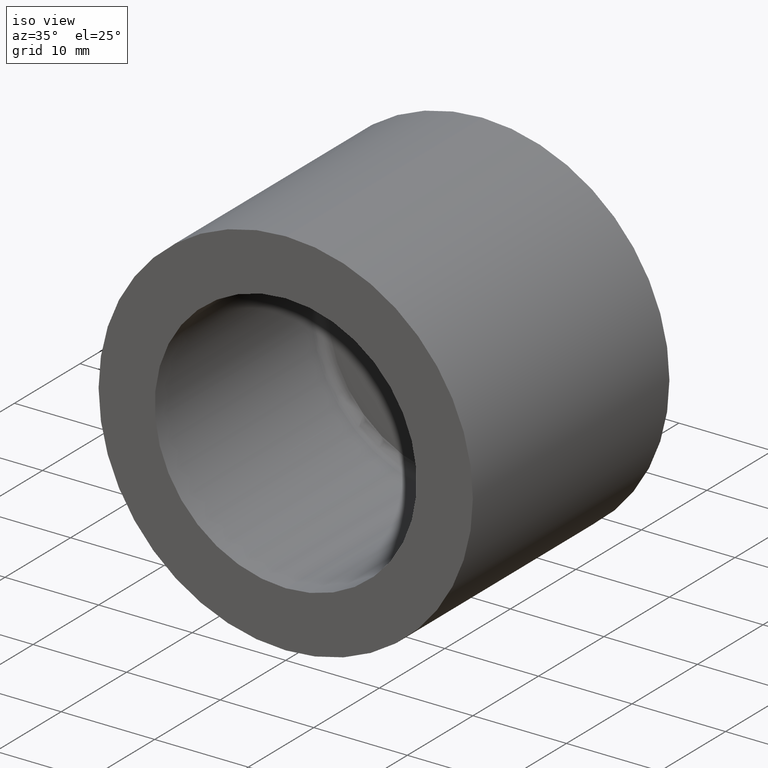
[diagram: clean part render]
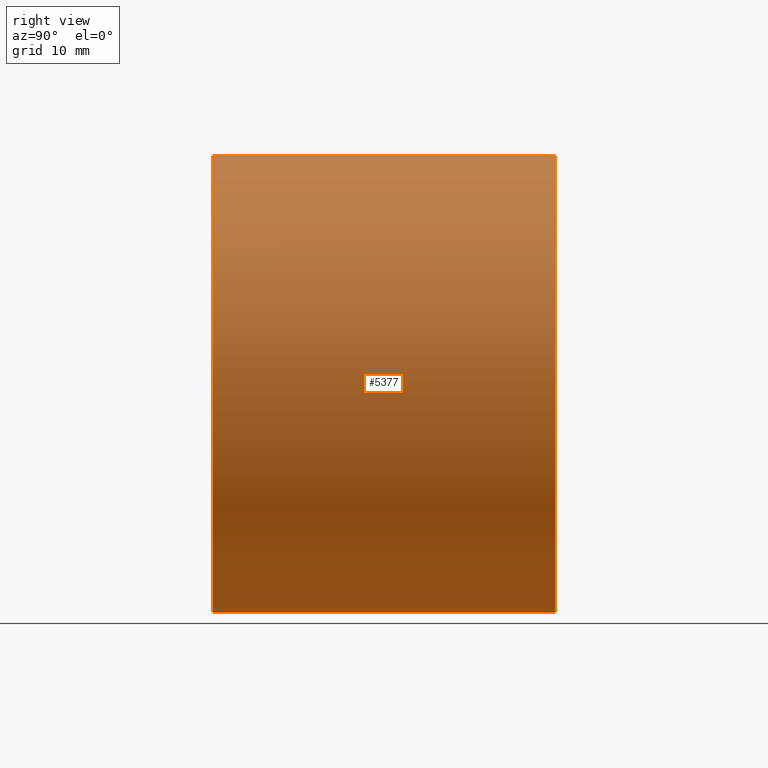
[diagram: tour spotlight — one face highlighted and labeled with its STEP entity id]
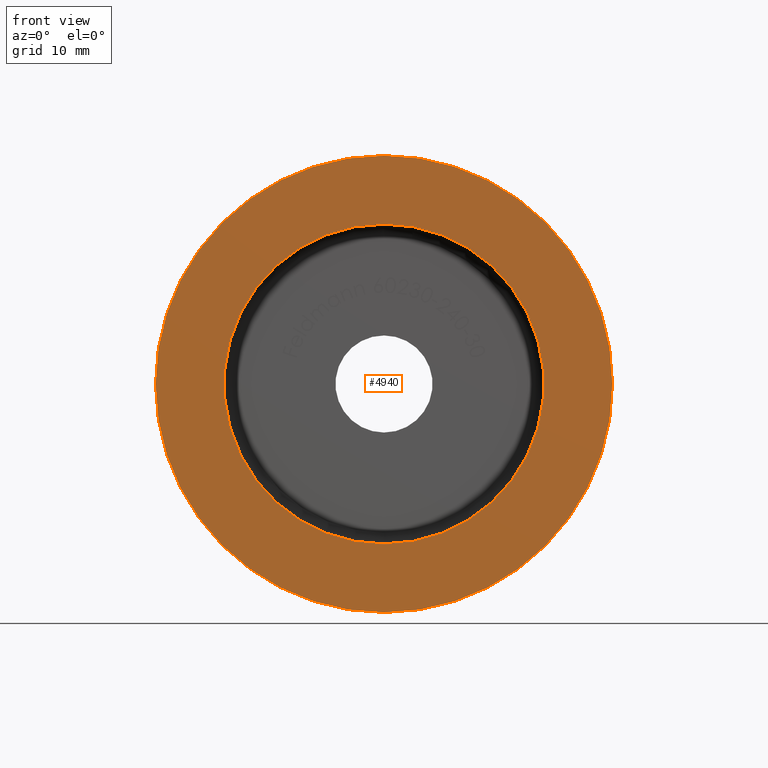
[diagram: tour spotlight — one face highlighted and labeled with its STEP entity id]
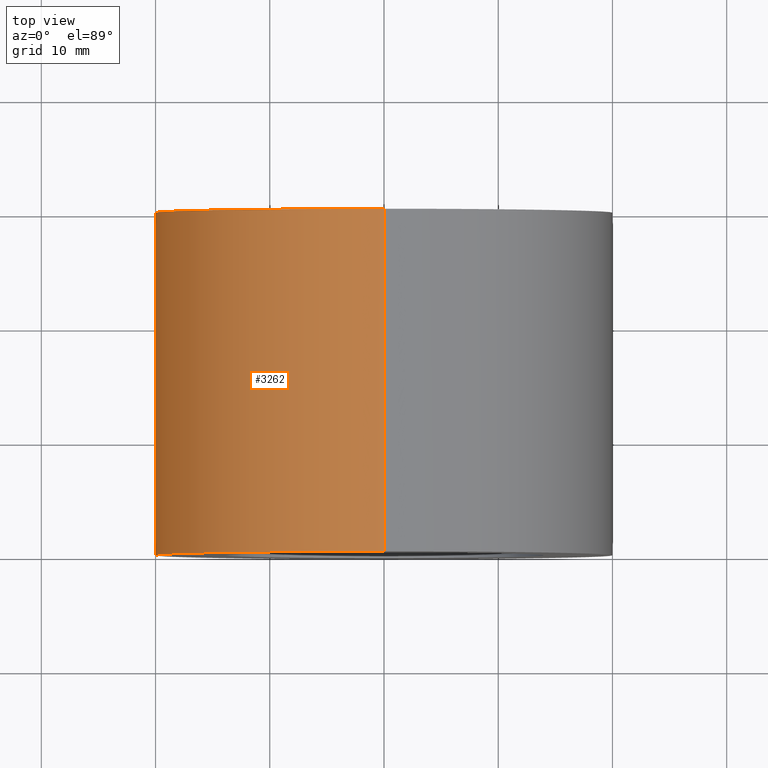
[diagram: tour spotlight — one face highlighted and labeled with its STEP entity id]
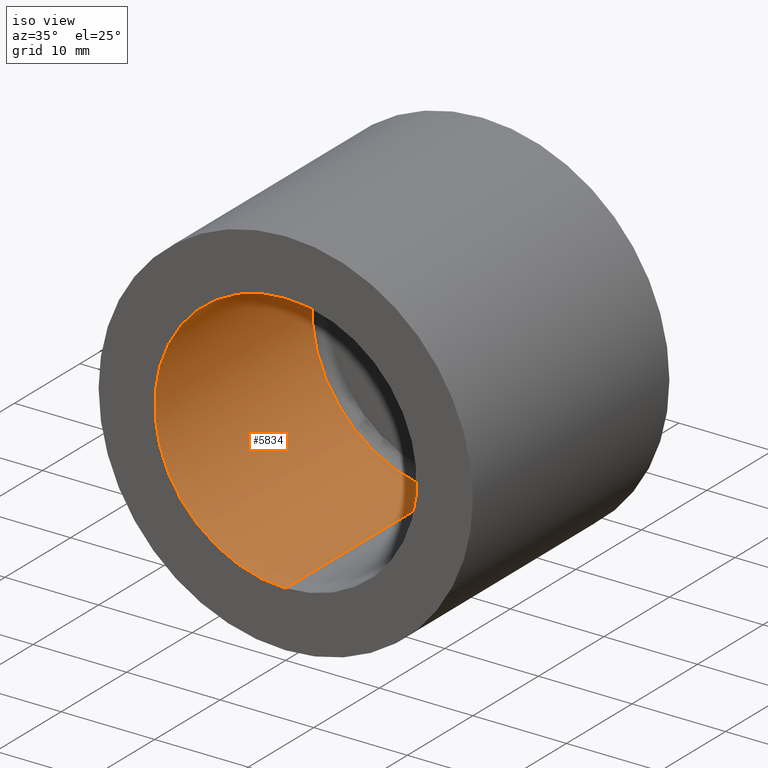
[diagram: tour spotlight — one face highlighted and labeled with its STEP entity id]
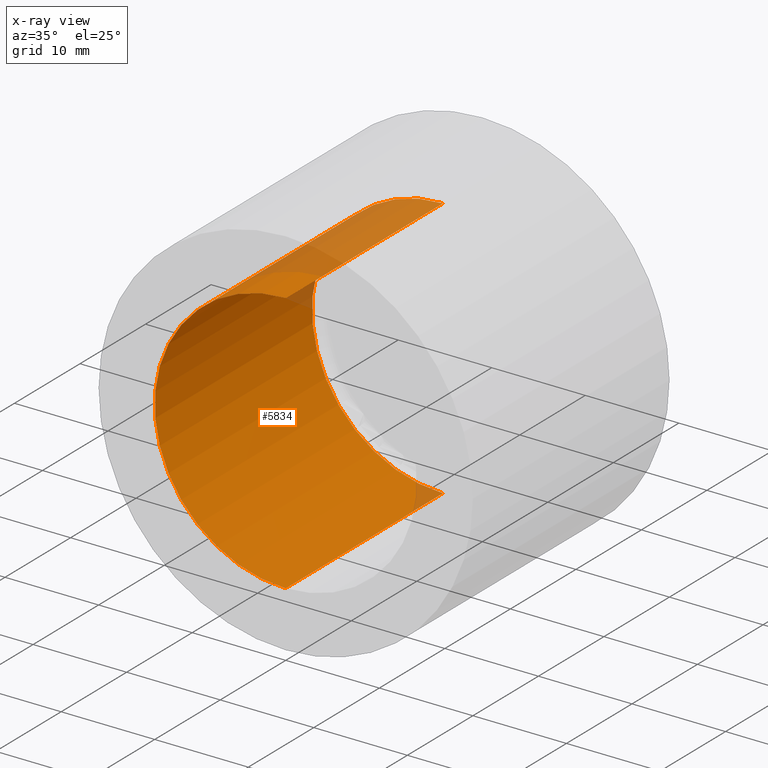
[diagram: x-ray of the same camera — body ghosted, this tour face saturated]
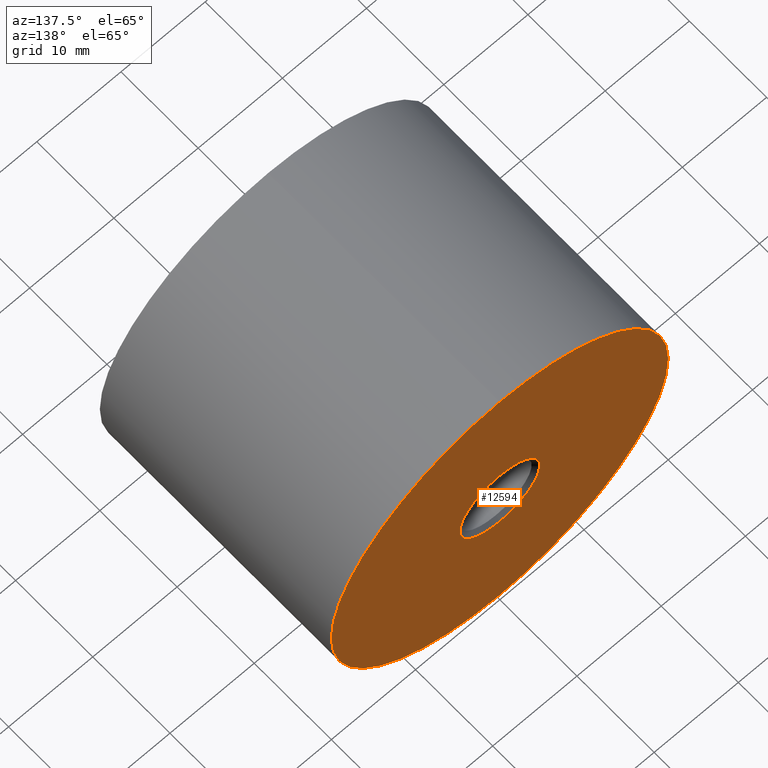
[diagram: tour spotlight — one face highlighted and labeled with its STEP entity id]
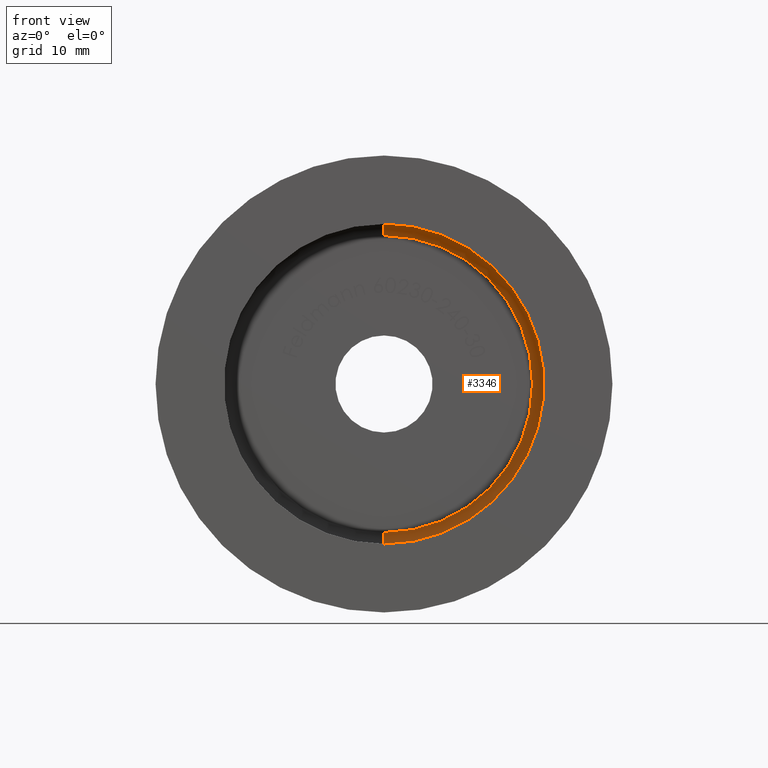
[diagram: tour spotlight — one face highlighted and labeled with its STEP entity id]
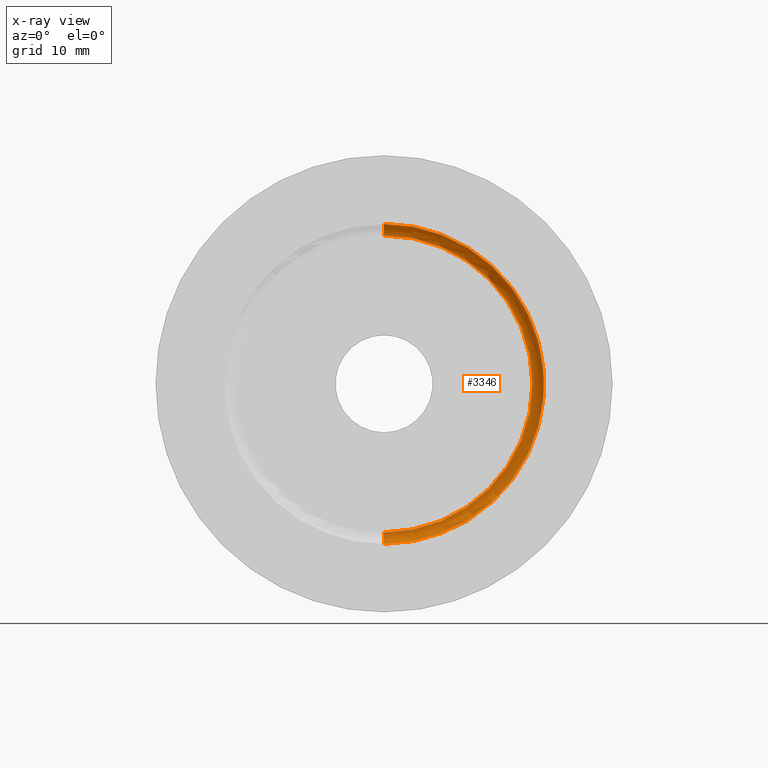
[diagram: x-ray of the same camera — body ghosted, this tour face saturated]
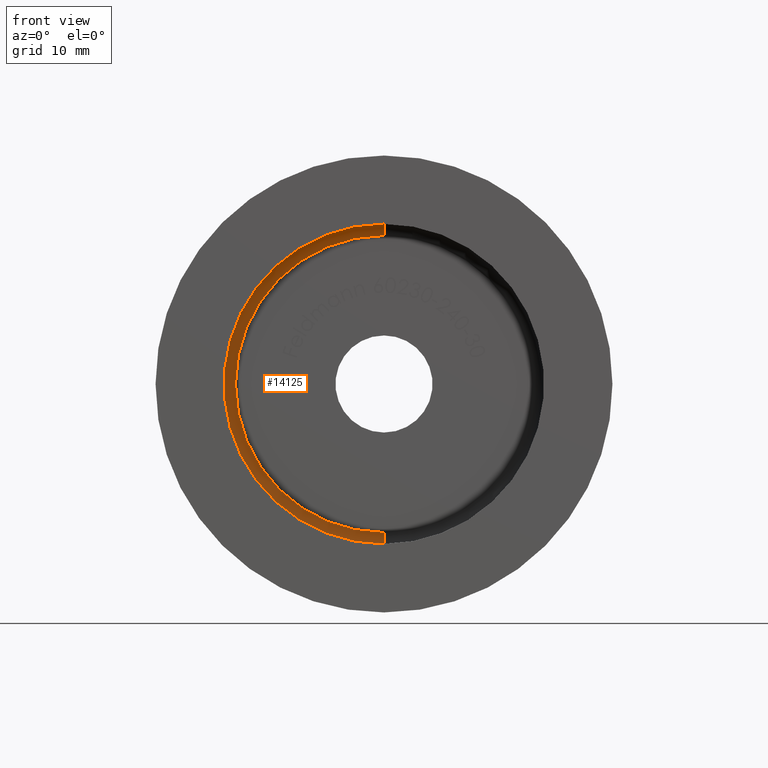
[diagram: tour spotlight — one face highlighted and labeled with its STEP entity id]
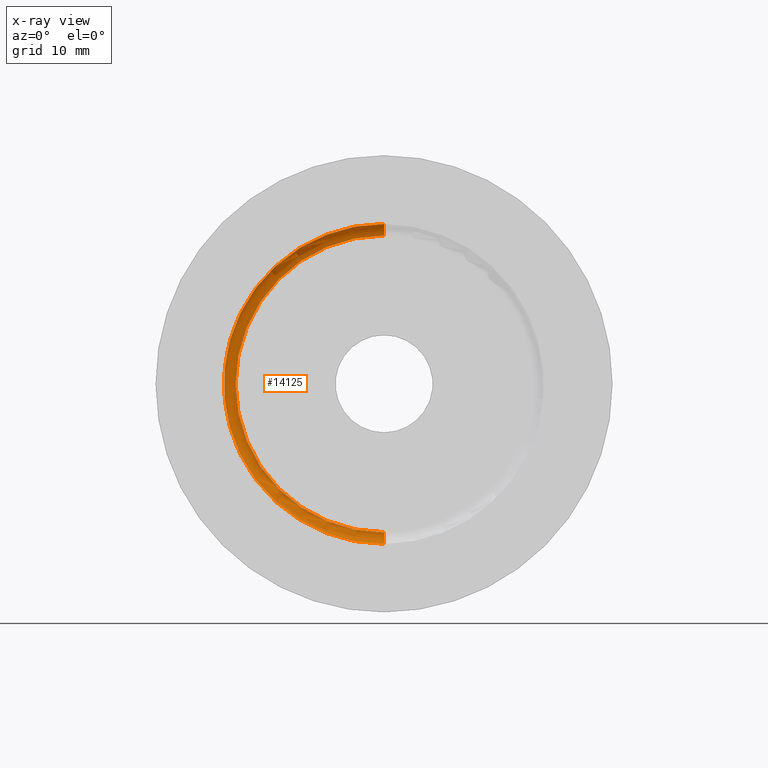
[diagram: x-ray of the same camera — body ghosted, this tour face saturated]
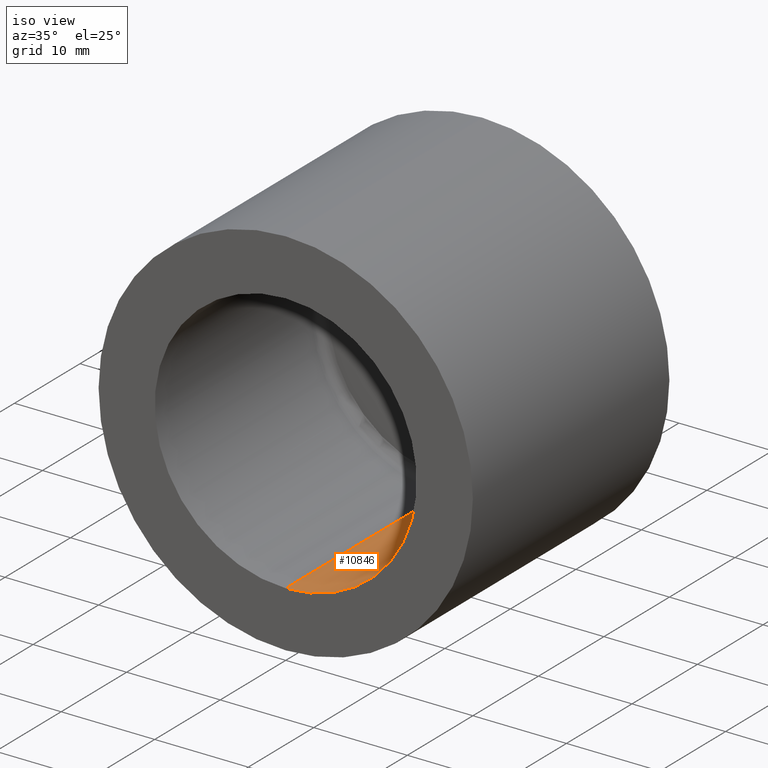
[diagram: tour spotlight — one face highlighted and labeled with its STEP entity id]
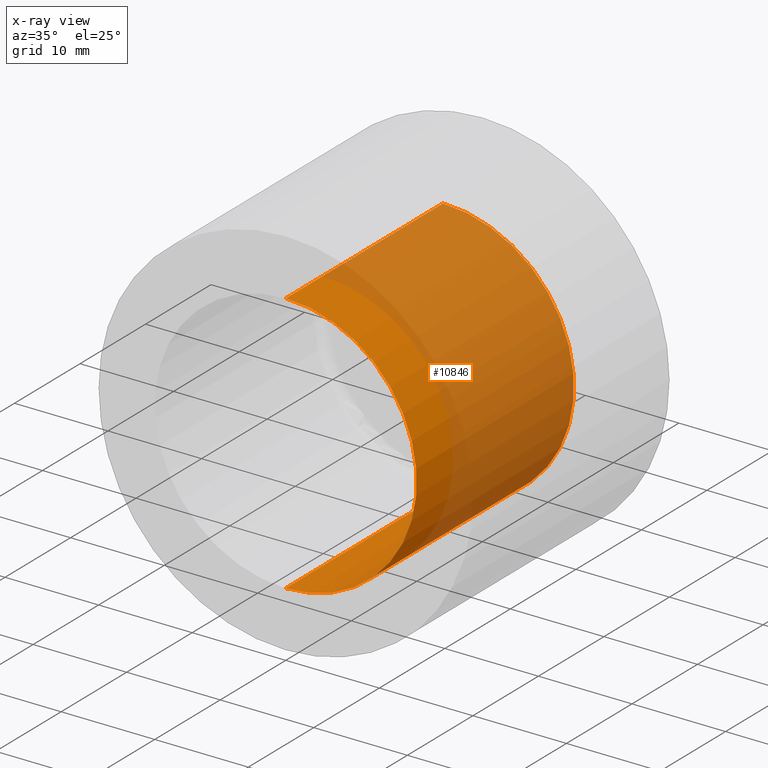
[diagram: x-ray of the same camera — body ghosted, this tour face saturated]
A machine part: a face-by-face anatomy tour. The part has 271 B-rep faces; the first image is the clean iso view, then the 8 largest visible faces are spotlighted one at a time (largest first), each with its STEP entity span.

Face 1 — right view, entity #5377. In plain terms, the highlighted cylindrical surface (partial cylindrical patch) has radius 20 mm, axis along (-0, 1, -0).
Definition (entity closure, byte-faithful):
#1001 = VERTEX_POINT ( 'NONE', #6628 ) ;
#1021 = CARTESIAN_POINT ( 'NONE',  ( 2.449293598294706513E-15, 0.000000000000000000, -20.00000000000000000 ) ) ;
#1128 = DIRECTION ( 'NONE',  ( -0.000000000000000000, 1.000000000000000000, -0.000000000000000000 ) ) ;
#1153 = LINE ( 'NONE', #2444, #12739 ) ;
#1687 = EDGE_CURVE ( 'NONE', #12346, #5553, #5341, .T. ) ;
#2324 = CARTESIAN_POINT ( 'NONE',  ( 0.000000000000000000, 0.000000000000000000, 0.000000000000000000 ) ) ;
#2444 = CARTESIAN_POINT ( 'NONE',  ( 0.000000000000000000, 30.00000000000000000, 20.00000000000000355 ) ) ;
#3727 = CYLINDRICAL_SURFACE ( 'NONE', #7210, 20.00000000000000355 ) ;
#4367 = CARTESIAN_POINT ( 'NONE',  ( 2.449293598294707302E-15, 30.00000000000000000, -20.00000000000000711 ) ) ;
#4596 = CARTESIAN_POINT ( 'NONE',  ( 2.449293598294706907E-15, 30.00000000000000000, -20.00000000000000355 ) ) ;
#4636 = CARTESIAN_POINT ( 'NONE',  ( 0.000000000000000000, 30.00000000000000000, 0.000000000000000000 ) ) ;
#5341 = CIRCLE ( 'NONE', #14836, 20.00000000000000711 ) ;
#5377 = ADVANCED_FACE ( 'NONE', ( #16061 ), #3727, .T. ) ;
#5378 = EDGE_CURVE ( 'NONE', #1001, #12346, #1153, .T. ) ;
#5496 = LINE ( 'NONE', #4596, #10978 ) ;
#5553 = VERTEX_POINT ( 'NONE', #4367 ) ;
#6193 = DIRECTION ( 'NONE',  ( 0.000000000000000000, 0.000000000000000000, 1.000000000000000000 ) ) ;
#6389 = EDGE_CURVE ( 'NONE', #6482, #5553, #5496, .T. ) ;
#6482 = VERTEX_POINT ( 'NONE', #1021 ) ;
#6510 = ORIENTED_EDGE ( 'NONE', *, *, #12658, .T. ) ;
#6628 = CARTESIAN_POINT ( 'NONE',  ( 0.000000000000000000, 0.000000000000000000, 20.00000000000000000 ) ) ;
#6802 = AXIS2_PLACEMENT_3D ( 'NONE', #2324, #16067, #6193 ) ;
#7127 = DIRECTION ( 'NONE',  ( -0.000000000000000000, 1.000000000000000000, -0.000000000000000000 ) ) ;
#7210 = AXIS2_PLACEMENT_3D ( 'NONE', #9588, #7127, #11109 ) ;
#8168 = DIRECTION ( 'NONE',  ( 0.000000000000000000, 0.000000000000000000, 1.000000000000000000 ) ) ;
#8209 = DIRECTION ( 'NONE',  ( -0.000000000000000000, 1.000000000000000000, -0.000000000000000000 ) ) ;
#8342 = ORIENTED_EDGE ( 'NONE', *, *, #5378, .F. ) ;
#9588 = CARTESIAN_POINT ( 'NONE',  ( 0.000000000000000000, 30.00000000000000000, 0.000000000000000000 ) ) ;
#10423 = CARTESIAN_POINT ( 'NONE',  ( 0.000000000000000000, 30.00000000000000000, 20.00000000000000711 ) ) ;
#10978 = VECTOR ( 'NONE', #13240, 1000.000000000000000 ) ;
#11109 = DIRECTION ( 'NONE',  ( 0.000000000000000000, 0.000000000000000000, 1.000000000000000000 ) ) ;
#12346 = VERTEX_POINT ( 'NONE', #10423 ) ;
#12658 = EDGE_CURVE ( 'NONE', #1001, #6482, #14906, .T. ) ;
#12739 = VECTOR ( 'NONE', #1128, 1000.000000000000000 ) ;
#13240 = DIRECTION ( 'NONE',  ( -0.000000000000000000, 1.000000000000000000, -0.000000000000000000 ) ) ;
#14728 = ORIENTED_EDGE ( 'NONE', *, *, #1687, .F. ) ;
#14836 = AXIS2_PLACEMENT_3D ( 'NONE', #4636, #8209, #8168 ) ;
#14906 = CIRCLE ( 'NONE', #6802, 20.00000000000000000 ) ;
#15312 = EDGE_LOOP ( 'NONE', ( #6510, #16140, #14728, #8342 ) ) ;
#16061 = FACE_OUTER_BOUND ( 'NONE', #15312, .T. ) ;
#16067 = DIRECTION ( 'NONE',  ( -0.000000000000000000, 1.000000000000000000, -0.000000000000000000 ) ) ;
#16140 = ORIENTED_EDGE ( 'NONE', *, *, #6389, .T. ) ;

Face 2 — front view, entity #4940. In plain terms, the highlighted planar face has unit normal (0, -1, 0).
Definition (entity closure, byte-faithful):
#1001 = VERTEX_POINT ( 'NONE', #6628 ) ;
#1021 = CARTESIAN_POINT ( 'NONE',  ( 2.449293598294706513E-15, 0.000000000000000000, -20.00000000000000000 ) ) ;
#1376 = EDGE_LOOP ( 'NONE', ( #4952, #12187 ) ) ;
#2324 = CARTESIAN_POINT ( 'NONE',  ( 0.000000000000000000, 0.000000000000000000, 0.000000000000000000 ) ) ;
#3203 = AXIS2_PLACEMENT_3D ( 'NONE', #6208, #3670, #14963 ) ;
#3670 = DIRECTION ( 'NONE',  ( 0.000000000000000000, -1.000000000000000000, 0.000000000000000000 ) ) ;
#3678 = EDGE_CURVE ( 'NONE', #15979, #8223, #4334, .T. ) ;
#4334 = CIRCLE ( 'NONE', #12310, 14.00000000000000000 ) ;
#4434 = ORIENTED_EDGE ( 'NONE', *, *, #13236, .F. ) ;
#4940 = ADVANCED_FACE ( 'NONE', ( #7260, #14873 ), #7554, .T. ) ;
#4952 = ORIENTED_EDGE ( 'NONE', *, *, #9308, .F. ) ;
#5727 = CARTESIAN_POINT ( 'NONE',  ( 1.714505518806294638E-15, 0.000000000000000000, 14.00000000000000000 ) ) ;
#5890 = CIRCLE ( 'NONE', #11507, 20.00000000000000000 ) ;
#6193 = DIRECTION ( 'NONE',  ( 0.000000000000000000, 0.000000000000000000, 1.000000000000000000 ) ) ;
#6195 = CARTESIAN_POINT ( 'NONE',  ( 0.000000000000000000, 0.000000000000000000, 0.000000000000000000 ) ) ;
#6208 = CARTESIAN_POINT ( 'NONE',  ( 0.000000000000000000, 0.000000000000000000, 0.000000000000000000 ) ) ;
#6326 = DIRECTION ( 'NONE',  ( 0.000000000000000000, -1.000000000000000000, 0.000000000000000000 ) ) ;
#6482 = VERTEX_POINT ( 'NONE', #1021 ) ;
#6539 = CIRCLE ( 'NONE', #3203, 14.00000000000000000 ) ;
#6628 = CARTESIAN_POINT ( 'NONE',  ( 0.000000000000000000, 0.000000000000000000, 20.00000000000000000 ) ) ;
#6802 = AXIS2_PLACEMENT_3D ( 'NONE', #2324, #16067, #6193 ) ;
#7260 = FACE_BOUND ( 'NONE', #1376, .T. ) ;
#7459 = DIRECTION ( 'NONE',  ( 0.000000000000000000, 0.000000000000000000, 1.000000000000000000 ) ) ;
#7526 = DIRECTION ( 'NONE',  ( -0.000000000000000000, 1.000000000000000000, -0.000000000000000000 ) ) ;
#7554 = PLANE ( 'NONE',  #8680 ) ;
#8026 = CARTESIAN_POINT ( 'NONE',  ( 0.000000000000000000, 0.000000000000000000, -14.00000000000000000 ) ) ;
#8223 = VERTEX_POINT ( 'NONE', #8026 ) ;
#8680 = AXIS2_PLACEMENT_3D ( 'NONE', #11354, #6326, #8803 ) ;
#8803 = DIRECTION ( 'NONE',  ( 0.000000000000000000, -0.000000000000000000, -1.000000000000000000 ) ) ;
#9291 = DIRECTION ( 'NONE',  ( 0.000000000000000000, -1.000000000000000000, 0.000000000000000000 ) ) ;
#9308 = EDGE_CURVE ( 'NONE', #8223, #15979, #6539, .T. ) ;
#10490 = DIRECTION ( 'NONE',  ( 0.000000000000000000, 0.000000000000000000, -1.000000000000000000 ) ) ;
#11354 = CARTESIAN_POINT ( 'NONE',  ( -8.499999999999998224, -1.207637078764412262E-15, 0.000000000000000000 ) ) ;
#11507 = AXIS2_PLACEMENT_3D ( 'NONE', #6195, #7526, #7459 ) ;
#11779 = CARTESIAN_POINT ( 'NONE',  ( 0.000000000000000000, 0.000000000000000000, 0.000000000000000000 ) ) ;
#12146 = EDGE_LOOP ( 'NONE', ( #13262, #4434 ) ) ;
#12187 = ORIENTED_EDGE ( 'NONE', *, *, #3678, .F. ) ;
#12310 = AXIS2_PLACEMENT_3D ( 'NONE', #11779, #9291, #10490 ) ;
#12658 = EDGE_CURVE ( 'NONE', #1001, #6482, #14906, .T. ) ;
#13236 = EDGE_CURVE ( 'NONE', #6482, #1001, #5890, .T. ) ;
#13262 = ORIENTED_EDGE ( 'NONE', *, *, #12658, .F. ) ;
#14873 = FACE_OUTER_BOUND ( 'NONE', #12146, .T. ) ;
#14906 = CIRCLE ( 'NONE', #6802, 20.00000000000000000 ) ;
#14963 = DIRECTION ( 'NONE',  ( 0.000000000000000000, 0.000000000000000000, -1.000000000000000000 ) ) ;
#15979 = VERTEX_POINT ( 'NONE', #5727 ) ;
#16067 = DIRECTION ( 'NONE',  ( -0.000000000000000000, 1.000000000000000000, -0.000000000000000000 ) ) ;

Face 3 — top view, entity #3262. In plain terms, the highlighted cylindrical surface (partial cylindrical patch) has radius 20 mm, axis along (-0, 1, -0).
Definition (entity closure, byte-faithful):
#465 = ORIENTED_EDGE ( 'NONE', *, *, #6389, .F. ) ;
#486 = DIRECTION ( 'NONE',  ( -0.000000000000000000, 1.000000000000000000, -0.000000000000000000 ) ) ;
#1001 = VERTEX_POINT ( 'NONE', #6628 ) ;
#1021 = CARTESIAN_POINT ( 'NONE',  ( 2.449293598294706513E-15, 0.000000000000000000, -20.00000000000000000 ) ) ;
#1128 = DIRECTION ( 'NONE',  ( -0.000000000000000000, 1.000000000000000000, -0.000000000000000000 ) ) ;
#1153 = LINE ( 'NONE', #2444, #12739 ) ;
#2097 = CARTESIAN_POINT ( 'NONE',  ( 0.000000000000000000, 30.00000000000000000, 0.000000000000000000 ) ) ;
#2444 = CARTESIAN_POINT ( 'NONE',  ( 0.000000000000000000, 30.00000000000000000, 20.00000000000000355 ) ) ;
#3262 = ADVANCED_FACE ( 'NONE', ( #5894 ), #7684, .T. ) ;
#3421 = DIRECTION ( 'NONE',  ( 0.000000000000000000, 0.000000000000000000, 1.000000000000000000 ) ) ;
#4367 = CARTESIAN_POINT ( 'NONE',  ( 2.449293598294707302E-15, 30.00000000000000000, -20.00000000000000711 ) ) ;
#4596 = CARTESIAN_POINT ( 'NONE',  ( 2.449293598294706907E-15, 30.00000000000000000, -20.00000000000000355 ) ) ;
#5378 = EDGE_CURVE ( 'NONE', #1001, #12346, #1153, .T. ) ;
#5496 = LINE ( 'NONE', #4596, #10978 ) ;
#5553 = VERTEX_POINT ( 'NONE', #4367 ) ;
#5890 = CIRCLE ( 'NONE', #11507, 20.00000000000000000 ) ;
#5894 = FACE_OUTER_BOUND ( 'NONE', #7473, .T. ) ;
#6155 = AXIS2_PLACEMENT_3D ( 'NONE', #15432, #486, #12972 ) ;
#6195 = CARTESIAN_POINT ( 'NONE',  ( 0.000000000000000000, 0.000000000000000000, 0.000000000000000000 ) ) ;
#6215 = EDGE_CURVE ( 'NONE', #5553, #12346, #15482, .T. ) ;
#6389 = EDGE_CURVE ( 'NONE', #6482, #5553, #5496, .T. ) ;
#6482 = VERTEX_POINT ( 'NONE', #1021 ) ;
#6628 = CARTESIAN_POINT ( 'NONE',  ( 0.000000000000000000, 0.000000000000000000, 20.00000000000000000 ) ) ;
#7459 = DIRECTION ( 'NONE',  ( 0.000000000000000000, 0.000000000000000000, 1.000000000000000000 ) ) ;
#7473 = EDGE_LOOP ( 'NONE', ( #465, #12841, #13559, #10828 ) ) ;
#7526 = DIRECTION ( 'NONE',  ( -0.000000000000000000, 1.000000000000000000, -0.000000000000000000 ) ) ;
#7684 = CYLINDRICAL_SURFACE ( 'NONE', #11485, 20.00000000000000355 ) ;
#10423 = CARTESIAN_POINT ( 'NONE',  ( 0.000000000000000000, 30.00000000000000000, 20.00000000000000711 ) ) ;
#10828 = ORIENTED_EDGE ( 'NONE', *, *, #6215, .F. ) ;
#10978 = VECTOR ( 'NONE', #13240, 1000.000000000000000 ) ;
#11485 = AXIS2_PLACEMENT_3D ( 'NONE', #2097, #14648, #3421 ) ;
#11507 = AXIS2_PLACEMENT_3D ( 'NONE', #6195, #7526, #7459 ) ;
#12346 = VERTEX_POINT ( 'NONE', #10423 ) ;
#12739 = VECTOR ( 'NONE', #1128, 1000.000000000000000 ) ;
#12841 = ORIENTED_EDGE ( 'NONE', *, *, #13236, .T. ) ;
#12972 = DIRECTION ( 'NONE',  ( 0.000000000000000000, 0.000000000000000000, 1.000000000000000000 ) ) ;
#13236 = EDGE_CURVE ( 'NONE', #6482, #1001, #5890, .T. ) ;
#13240 = DIRECTION ( 'NONE',  ( -0.000000000000000000, 1.000000000000000000, -0.000000000000000000 ) ) ;
#13559 = ORIENTED_EDGE ( 'NONE', *, *, #5378, .T. ) ;
#14648 = DIRECTION ( 'NONE',  ( -0.000000000000000000, 1.000000000000000000, -0.000000000000000000 ) ) ;
#15432 = CARTESIAN_POINT ( 'NONE',  ( 0.000000000000000000, 30.00000000000000000, 0.000000000000000000 ) ) ;
#15482 = CIRCLE ( 'NONE', #6155, 20.00000000000000711 ) ;

Face 4 — iso view, entity #5834. An x-ray twin of the same camera follows (body ghosted, this face saturated) — the face is partly hidden behind the body. In plain terms, the highlighted cylindrical surface (partial cylindrical patch) has radius 14 mm, axis along (-0, -1, -0).
Definition (entity closure, byte-faithful):
#517 = CARTESIAN_POINT ( 'NONE',  ( 0.000000000000000000, 23.99999999999999289, 0.000000000000000000 ) ) ;
#2348 = FACE_OUTER_BOUND ( 'NONE', #9994, .T. ) ;
#3032 = CARTESIAN_POINT ( 'NONE',  ( 1.714505518806294638E-15, 69.59797974644666851, 14.00000000000000000 ) ) ;
#3081 = CARTESIAN_POINT ( 'NONE',  ( 1.714505518806294638E-15, 23.99999999999999289, 14.00000000000000000 ) ) ;
#3187 = DIRECTION ( 'NONE',  ( -0.000000000000000000, -1.000000000000000000, -0.000000000000000000 ) ) ;
#3542 = CARTESIAN_POINT ( 'NONE',  ( 0.000000000000000000, 23.99999999999999289, -14.00000000000000000 ) ) ;
#3678 = EDGE_CURVE ( 'NONE', #15979, #8223, #4334, .T. ) ;
#4012 = DIRECTION ( 'NONE',  ( 0.000000000000000000, 0.000000000000000000, -1.000000000000000000 ) ) ;
#4153 = AXIS2_PLACEMENT_3D ( 'NONE', #517, #9321, #5414 ) ;
#4334 = CIRCLE ( 'NONE', #12310, 14.00000000000000000 ) ;
#5188 = ORIENTED_EDGE ( 'NONE', *, *, #7911, .T. ) ;
#5414 = DIRECTION ( 'NONE',  ( 0.000000000000000000, 0.000000000000000000, 1.000000000000000000 ) ) ;
#5531 = VERTEX_POINT ( 'NONE', #3081 ) ;
#5611 = EDGE_CURVE ( 'NONE', #11368, #5531, #7286, .T. ) ;
#5727 = CARTESIAN_POINT ( 'NONE',  ( 1.714505518806294638E-15, 0.000000000000000000, 14.00000000000000000 ) ) ;
#5834 = ADVANCED_FACE ( 'NONE', ( #2348 ), #11954, .F. ) ;
#7286 = CIRCLE ( 'NONE', #4153, 14.00000000000000000 ) ;
#7840 = AXIS2_PLACEMENT_3D ( 'NONE', #13921, #12702, #4012 ) ;
#7911 = EDGE_CURVE ( 'NONE', #5531, #15979, #12749, .T. ) ;
#8026 = CARTESIAN_POINT ( 'NONE',  ( 0.000000000000000000, 0.000000000000000000, -14.00000000000000000 ) ) ;
#8223 = VERTEX_POINT ( 'NONE', #8026 ) ;
#9291 = DIRECTION ( 'NONE',  ( 0.000000000000000000, -1.000000000000000000, 0.000000000000000000 ) ) ;
#9321 = DIRECTION ( 'NONE',  ( -0.000000000000000000, 1.000000000000000000, -0.000000000000000000 ) ) ;
#9524 = CARTESIAN_POINT ( 'NONE',  ( 0.000000000000000000, 69.59797974644666851, -14.00000000000000000 ) ) ;
#9994 = EDGE_LOOP ( 'NONE', ( #15087, #5188, #11228, #14584 ) ) ;
#10393 = DIRECTION ( 'NONE',  ( -0.000000000000000000, -1.000000000000000000, -0.000000000000000000 ) ) ;
#10490 = DIRECTION ( 'NONE',  ( 0.000000000000000000, 0.000000000000000000, -1.000000000000000000 ) ) ;
#10725 = EDGE_CURVE ( 'NONE', #11368, #8223, #16105, .T. ) ;
#10784 = VECTOR ( 'NONE', #10393, 1000.000000000000000 ) ;
#11228 = ORIENTED_EDGE ( 'NONE', *, *, #3678, .T. ) ;
#11368 = VERTEX_POINT ( 'NONE', #3542 ) ;
#11779 = CARTESIAN_POINT ( 'NONE',  ( 0.000000000000000000, 0.000000000000000000, 0.000000000000000000 ) ) ;
#11954 = CYLINDRICAL_SURFACE ( 'NONE', #7840, 14.00000000000000000 ) ;
#12310 = AXIS2_PLACEMENT_3D ( 'NONE', #11779, #9291, #10490 ) ;
#12702 = DIRECTION ( 'NONE',  ( -0.000000000000000000, -1.000000000000000000, -0.000000000000000000 ) ) ;
#12749 = LINE ( 'NONE', #3032, #10784 ) ;
#13921 = CARTESIAN_POINT ( 'NONE',  ( 0.000000000000000000, 69.59797974644666851, 0.000000000000000000 ) ) ;
#14160 = VECTOR ( 'NONE', #3187, 1000.000000000000000 ) ;
#14584 = ORIENTED_EDGE ( 'NONE', *, *, #10725, .F. ) ;
#15087 = ORIENTED_EDGE ( 'NONE', *, *, #5611, .T. ) ;
#15979 = VERTEX_POINT ( 'NONE', #5727 ) ;
#16105 = LINE ( 'NONE', #9524, #14160 ) ;

Face 5 — auxiliary view, entity #12594. In plain terms, the highlighted planar face has unit normal (-0, 1, 0).
Definition (entity closure, byte-faithful):
#117 = DIRECTION ( 'NONE',  ( 0.000000000000000000, 0.000000000000000000, 1.000000000000000000 ) ) ;
#486 = DIRECTION ( 'NONE',  ( -0.000000000000000000, 1.000000000000000000, -0.000000000000000000 ) ) ;
#805 = DIRECTION ( 'NONE',  ( 0.000000000000000000, 0.000000000000000000, 1.000000000000000000 ) ) ;
#1173 = EDGE_LOOP ( 'NONE', ( #3328, #10084 ) ) ;
#1687 = EDGE_CURVE ( 'NONE', #12346, #5553, #5341, .T. ) ;
#1812 = CIRCLE ( 'NONE', #14232, 4.750000000000004441 ) ;
#1944 = PLANE ( 'NONE',  #3102 ) ;
#3102 = AXIS2_PLACEMENT_3D ( 'NONE', #15845, #3211, #805 ) ;
#3211 = DIRECTION ( 'NONE',  ( -0.000000000000000000, 1.000000000000000000, 0.000000000000000000 ) ) ;
#3328 = ORIENTED_EDGE ( 'NONE', *, *, #13198, .F. ) ;
#3923 = EDGE_LOOP ( 'NONE', ( #8701, #14461 ) ) ;
#4107 = DIRECTION ( 'NONE',  ( -0.000000000000000000, 1.000000000000000000, -0.000000000000000000 ) ) ;
#4331 = CIRCLE ( 'NONE', #9007, 4.750000000000004441 ) ;
#4367 = CARTESIAN_POINT ( 'NONE',  ( 2.449293598294707302E-15, 30.00000000000000000, -20.00000000000000711 ) ) ;
#4636 = CARTESIAN_POINT ( 'NONE',  ( 0.000000000000000000, 30.00000000000000000, 0.000000000000000000 ) ) ;
#5341 = CIRCLE ( 'NONE', #14836, 20.00000000000000711 ) ;
#5553 = VERTEX_POINT ( 'NONE', #4367 ) ;
#6155 = AXIS2_PLACEMENT_3D ( 'NONE', #15432, #486, #12972 ) ;
#6215 = EDGE_CURVE ( 'NONE', #5553, #12346, #15482, .T. ) ;
#6243 = DIRECTION ( 'NONE',  ( -0.000000000000000000, 1.000000000000000000, -0.000000000000000000 ) ) ;
#6354 = DIRECTION ( 'NONE',  ( 0.000000000000000000, 0.000000000000000000, 1.000000000000000000 ) ) ;
#8168 = DIRECTION ( 'NONE',  ( 0.000000000000000000, 0.000000000000000000, 1.000000000000000000 ) ) ;
#8209 = DIRECTION ( 'NONE',  ( -0.000000000000000000, 1.000000000000000000, -0.000000000000000000 ) ) ;
#8701 = ORIENTED_EDGE ( 'NONE', *, *, #1687, .T. ) ;
#8872 = FACE_BOUND ( 'NONE', #1173, .T. ) ;
#9007 = AXIS2_PLACEMENT_3D ( 'NONE', #13797, #6243, #6354 ) ;
#10020 = EDGE_CURVE ( 'NONE', #10688, #13264, #1812, .T. ) ;
#10084 = ORIENTED_EDGE ( 'NONE', *, *, #10020, .F. ) ;
#10423 = CARTESIAN_POINT ( 'NONE',  ( 0.000000000000000000, 30.00000000000000000, 20.00000000000000711 ) ) ;
#10688 = VERTEX_POINT ( 'NONE', #14263 ) ;
#12346 = VERTEX_POINT ( 'NONE', #10423 ) ;
#12594 = ADVANCED_FACE ( 'NONE', ( #14505, #8872 ), #1944, .T. ) ;
#12972 = DIRECTION ( 'NONE',  ( 0.000000000000000000, 0.000000000000000000, 1.000000000000000000 ) ) ;
#13198 = EDGE_CURVE ( 'NONE', #13264, #10688, #4331, .T. ) ;
#13264 = VERTEX_POINT ( 'NONE', #15251 ) ;
#13797 = CARTESIAN_POINT ( 'NONE',  ( 0.000000000000000000, 30.00000000000000000, 0.000000000000000000 ) ) ;
#14232 = AXIS2_PLACEMENT_3D ( 'NONE', #15222, #4107, #117 ) ;
#14263 = CARTESIAN_POINT ( 'NONE',  ( 5.817072295949933342E-16, 30.00000000000000000, -4.750000000000004441 ) ) ;
#14461 = ORIENTED_EDGE ( 'NONE', *, *, #6215, .T. ) ;
#14505 = FACE_OUTER_BOUND ( 'NONE', #3923, .T. ) ;
#14836 = AXIS2_PLACEMENT_3D ( 'NONE', #4636, #8209, #8168 ) ;
#15222 = CARTESIAN_POINT ( 'NONE',  ( 0.000000000000000000, 30.00000000000000000, 0.000000000000000000 ) ) ;
#15251 = CARTESIAN_POINT ( 'NONE',  ( 0.000000000000000000, 30.00000000000000000, 4.750000000000004441 ) ) ;
#15432 = CARTESIAN_POINT ( 'NONE',  ( 0.000000000000000000, 30.00000000000000000, 0.000000000000000000 ) ) ;
#15482 = CIRCLE ( 'NONE', #6155, 20.00000000000000711 ) ;
#15845 = CARTESIAN_POINT ( 'NONE',  ( -20.00000000000000711, 30.00000000000000000, 0.000000000000000000 ) ) ;

Face 6 — front view, entity #3346. An x-ray twin of the same camera follows (body ghosted, this face saturated) — the face is partly hidden behind the body. In plain terms, the highlighted toroidal blend (fillet) surface has major radius 13 mm and minor (blend) radius 1 mm.
Definition (entity closure, byte-faithful):
#46 = EDGE_CURVE ( 'NONE', #11368, #9678, #12202, .T. ) ;
#127 = EDGE_LOOP ( 'NONE', ( #13931, #3560, #4543, #595 ) ) ;
#595 = ORIENTED_EDGE ( 'NONE', *, *, #4615, .F. ) ;
#881 = AXIS2_PLACEMENT_3D ( 'NONE', #8708, #16212, #5810 ) ;
#1408 = CARTESIAN_POINT ( 'NONE',  ( 0.000000000000000000, 23.99999999999999289, 0.000000000000000000 ) ) ;
#2655 = DIRECTION ( 'NONE',  ( 0.000000000000000000, 0.000000000000000000, 1.000000000000000000 ) ) ;
#2981 = CARTESIAN_POINT ( 'NONE',  ( 0.000000000000000000, 24.99999999999999645, 0.000000000000000000 ) ) ;
#3081 = CARTESIAN_POINT ( 'NONE',  ( 1.714505518806294638E-15, 23.99999999999999289, 14.00000000000000000 ) ) ;
#3346 = ADVANCED_FACE ( 'NONE', ( #13925 ), #5128, .F. ) ;
#3542 = CARTESIAN_POINT ( 'NONE',  ( 0.000000000000000000, 23.99999999999999289, -14.00000000000000000 ) ) ;
#3560 = ORIENTED_EDGE ( 'NONE', *, *, #8642, .F. ) ;
#4543 = ORIENTED_EDGE ( 'NONE', *, *, #15563, .T. ) ;
#4615 = EDGE_CURVE ( 'NONE', #9678, #8694, #15847, .T. ) ;
#5128 = TOROIDAL_SURFACE ( 'NONE', #881, 13.00000000000000178, 1.000000000000000000 ) ;
#5531 = VERTEX_POINT ( 'NONE', #3081 ) ;
#5738 = CARTESIAN_POINT ( 'NONE',  ( 1.592040838891559293E-15, 23.99999999999999289, -13.00000000000000178 ) ) ;
#5810 = DIRECTION ( 'NONE',  ( 0.000000000000000000, 0.000000000000000000, 1.000000000000000000 ) ) ;
#6023 = DIRECTION ( 'NONE',  ( -1.000000000000000000, 0.000000000000000000, 0.000000000000000000 ) ) ;
#6870 = AXIS2_PLACEMENT_3D ( 'NONE', #5738, #12180, #12241 ) ;
#8642 = EDGE_CURVE ( 'NONE', #5531, #11368, #9124, .T. ) ;
#8694 = VERTEX_POINT ( 'NONE', #9108 ) ;
#8708 = CARTESIAN_POINT ( 'NONE',  ( 0.000000000000000000, 23.99999999999999289, 0.000000000000000000 ) ) ;
#9108 = CARTESIAN_POINT ( 'NONE',  ( 0.000000000000000000, 24.99999999999999645, 13.00000000000000178 ) ) ;
#9124 = CIRCLE ( 'NONE', #14753, 14.00000000000000000 ) ;
#9678 = VERTEX_POINT ( 'NONE', #14459 ) ;
#9813 = CARTESIAN_POINT ( 'NONE',  ( 0.000000000000000000, 23.99999999999999289, 13.00000000000000178 ) ) ;
#10055 = AXIS2_PLACEMENT_3D ( 'NONE', #2981, #13175, #10517 ) ;
#10197 = DIRECTION ( 'NONE',  ( -0.000000000000000000, 1.000000000000000000, -0.000000000000000000 ) ) ;
#10517 = DIRECTION ( 'NONE',  ( 0.000000000000000000, 0.000000000000000000, 1.000000000000000000 ) ) ;
#11368 = VERTEX_POINT ( 'NONE', #3542 ) ;
#12180 = DIRECTION ( 'NONE',  ( 1.000000000000000000, 0.000000000000000000, 1.224646799147353207E-16 ) ) ;
#12202 = CIRCLE ( 'NONE', #6870, 1.000000000000000888 ) ;
#12241 = DIRECTION ( 'NONE',  ( 1.224646799147351482E-16, 0.000000000000000000, -1.000000000000000000 ) ) ;
#13100 = AXIS2_PLACEMENT_3D ( 'NONE', #9813, #6023, #13354 ) ;
#13175 = DIRECTION ( 'NONE',  ( 0.000000000000000000, -1.000000000000000000, 0.000000000000000000 ) ) ;
#13354 = DIRECTION ( 'NONE',  ( 0.000000000000000000, 0.000000000000000000, 1.000000000000000000 ) ) ;
#13372 = CIRCLE ( 'NONE', #13100, 1.000000000000000888 ) ;
#13925 = FACE_OUTER_BOUND ( 'NONE', #127, .T. ) ;
#13931 = ORIENTED_EDGE ( 'NONE', *, *, #46, .F. ) ;
#14459 = CARTESIAN_POINT ( 'NONE',  ( 1.653273178848927064E-15, 24.99999999999999645, -13.00000000000000178 ) ) ;
#14753 = AXIS2_PLACEMENT_3D ( 'NONE', #1408, #10197, #2655 ) ;
#15563 = EDGE_CURVE ( 'NONE', #5531, #8694, #13372, .T. ) ;
#15847 = CIRCLE ( 'NONE', #10055, 13.00000000000000178 ) ;
#16212 = DIRECTION ( 'NONE',  ( -0.000000000000000000, 1.000000000000000000, -0.000000000000000000 ) ) ;

Face 7 — front view, entity #14125. An x-ray twin of the same camera follows (body ghosted, this face saturated) — the face is partly hidden behind the body. In plain terms, the highlighted toroidal blend (fillet) surface has major radius 13 mm and minor (blend) radius 1 mm.
Definition (entity closure, byte-faithful):
#5 = ORIENTED_EDGE ( 'NONE', *, *, #5611, .F. ) ;
#46 = EDGE_CURVE ( 'NONE', #11368, #9678, #12202, .T. ) ;
#517 = CARTESIAN_POINT ( 'NONE',  ( 0.000000000000000000, 23.99999999999999289, 0.000000000000000000 ) ) ;
#876 = EDGE_CURVE ( 'NONE', #8694, #9678, #13377, .T. ) ;
#1955 = DIRECTION ( 'NONE',  ( 0.000000000000000000, 0.000000000000000000, 1.000000000000000000 ) ) ;
#3081 = CARTESIAN_POINT ( 'NONE',  ( 1.714505518806294638E-15, 23.99999999999999289, 14.00000000000000000 ) ) ;
#3306 = DIRECTION ( 'NONE',  ( 0.000000000000000000, 0.000000000000000000, 1.000000000000000000 ) ) ;
#3542 = CARTESIAN_POINT ( 'NONE',  ( 0.000000000000000000, 23.99999999999999289, -14.00000000000000000 ) ) ;
#3857 = AXIS2_PLACEMENT_3D ( 'NONE', #9059, #10790, #1955 ) ;
#4153 = AXIS2_PLACEMENT_3D ( 'NONE', #517, #9321, #5414 ) ;
#5414 = DIRECTION ( 'NONE',  ( 0.000000000000000000, 0.000000000000000000, 1.000000000000000000 ) ) ;
#5531 = VERTEX_POINT ( 'NONE', #3081 ) ;
#5611 = EDGE_CURVE ( 'NONE', #11368, #5531, #7286, .T. ) ;
#5738 = CARTESIAN_POINT ( 'NONE',  ( 1.592040838891559293E-15, 23.99999999999999289, -13.00000000000000178 ) ) ;
#6023 = DIRECTION ( 'NONE',  ( -1.000000000000000000, 0.000000000000000000, 0.000000000000000000 ) ) ;
#6178 = ORIENTED_EDGE ( 'NONE', *, *, #46, .T. ) ;
#6870 = AXIS2_PLACEMENT_3D ( 'NONE', #5738, #12180, #12241 ) ;
#7071 = EDGE_LOOP ( 'NONE', ( #5, #6178, #15863, #15849 ) ) ;
#7286 = CIRCLE ( 'NONE', #4153, 14.00000000000000000 ) ;
#8056 = FACE_OUTER_BOUND ( 'NONE', #7071, .T. ) ;
#8694 = VERTEX_POINT ( 'NONE', #9108 ) ;
#9059 = CARTESIAN_POINT ( 'NONE',  ( 0.000000000000000000, 23.99999999999999289, 0.000000000000000000 ) ) ;
#9108 = CARTESIAN_POINT ( 'NONE',  ( 0.000000000000000000, 24.99999999999999645, 13.00000000000000178 ) ) ;
#9321 = DIRECTION ( 'NONE',  ( -0.000000000000000000, 1.000000000000000000, -0.000000000000000000 ) ) ;
#9678 = VERTEX_POINT ( 'NONE', #14459 ) ;
#9813 = CARTESIAN_POINT ( 'NONE',  ( 0.000000000000000000, 23.99999999999999289, 13.00000000000000178 ) ) ;
#10790 = DIRECTION ( 'NONE',  ( -0.000000000000000000, 1.000000000000000000, -0.000000000000000000 ) ) ;
#10841 = CARTESIAN_POINT ( 'NONE',  ( 0.000000000000000000, 24.99999999999999645, 0.000000000000000000 ) ) ;
#10896 = DIRECTION ( 'NONE',  ( 0.000000000000000000, -1.000000000000000000, 0.000000000000000000 ) ) ;
#11066 = AXIS2_PLACEMENT_3D ( 'NONE', #10841, #10896, #3306 ) ;
#11368 = VERTEX_POINT ( 'NONE', #3542 ) ;
#12180 = DIRECTION ( 'NONE',  ( 1.000000000000000000, 0.000000000000000000, 1.224646799147353207E-16 ) ) ;
#12202 = CIRCLE ( 'NONE', #6870, 1.000000000000000888 ) ;
#12241 = DIRECTION ( 'NONE',  ( 1.224646799147351482E-16, 0.000000000000000000, -1.000000000000000000 ) ) ;
#13100 = AXIS2_PLACEMENT_3D ( 'NONE', #9813, #6023, #13354 ) ;
#13354 = DIRECTION ( 'NONE',  ( 0.000000000000000000, 0.000000000000000000, 1.000000000000000000 ) ) ;
#13372 = CIRCLE ( 'NONE', #13100, 1.000000000000000888 ) ;
#13377 = CIRCLE ( 'NONE', #11066, 13.00000000000000178 ) ;
#14125 = ADVANCED_FACE ( 'NONE', ( #8056 ), #15843, .F. ) ;
#14459 = CARTESIAN_POINT ( 'NONE',  ( 1.653273178848927064E-15, 24.99999999999999645, -13.00000000000000178 ) ) ;
#15563 = EDGE_CURVE ( 'NONE', #5531, #8694, #13372, .T. ) ;
#15843 = TOROIDAL_SURFACE ( 'NONE', #3857, 13.00000000000000178, 1.000000000000000000 ) ;
#15849 = ORIENTED_EDGE ( 'NONE', *, *, #15563, .F. ) ;
#15863 = ORIENTED_EDGE ( 'NONE', *, *, #876, .F. ) ;

Face 8 — iso view, entity #10846. An x-ray twin of the same camera follows (body ghosted, this face saturated) — the face is partly hidden behind the body. In plain terms, the highlighted cylindrical surface (partial cylindrical patch) has radius 14 mm, axis along (-0, -1, -0).
Definition (entity closure, byte-faithful):
#1408 = CARTESIAN_POINT ( 'NONE',  ( 0.000000000000000000, 23.99999999999999289, 0.000000000000000000 ) ) ;
#1999 = FACE_OUTER_BOUND ( 'NONE', #11818, .T. ) ;
#2655 = DIRECTION ( 'NONE',  ( 0.000000000000000000, 0.000000000000000000, 1.000000000000000000 ) ) ;
#3032 = CARTESIAN_POINT ( 'NONE',  ( 1.714505518806294638E-15, 69.59797974644666851, 14.00000000000000000 ) ) ;
#3081 = CARTESIAN_POINT ( 'NONE',  ( 1.714505518806294638E-15, 23.99999999999999289, 14.00000000000000000 ) ) ;
#3187 = DIRECTION ( 'NONE',  ( -0.000000000000000000, -1.000000000000000000, -0.000000000000000000 ) ) ;
#3203 = AXIS2_PLACEMENT_3D ( 'NONE', #6208, #3670, #14963 ) ;
#3542 = CARTESIAN_POINT ( 'NONE',  ( 0.000000000000000000, 23.99999999999999289, -14.00000000000000000 ) ) ;
#3670 = DIRECTION ( 'NONE',  ( 0.000000000000000000, -1.000000000000000000, 0.000000000000000000 ) ) ;
#4031 = ORIENTED_EDGE ( 'NONE', *, *, #8642, .T. ) ;
#5531 = VERTEX_POINT ( 'NONE', #3081 ) ;
#5727 = CARTESIAN_POINT ( 'NONE',  ( 1.714505518806294638E-15, 0.000000000000000000, 14.00000000000000000 ) ) ;
#5773 = CARTESIAN_POINT ( 'NONE',  ( 0.000000000000000000, 69.59797974644666851, 0.000000000000000000 ) ) ;
#6208 = CARTESIAN_POINT ( 'NONE',  ( 0.000000000000000000, 0.000000000000000000, 0.000000000000000000 ) ) ;
#6539 = CIRCLE ( 'NONE', #3203, 14.00000000000000000 ) ;
#7042 = DIRECTION ( 'NONE',  ( -0.000000000000000000, -1.000000000000000000, -0.000000000000000000 ) ) ;
#7121 = AXIS2_PLACEMENT_3D ( 'NONE', #5773, #7042, #7209 ) ;
#7209 = DIRECTION ( 'NONE',  ( 0.000000000000000000, 0.000000000000000000, -1.000000000000000000 ) ) ;
#7911 = EDGE_CURVE ( 'NONE', #5531, #15979, #12749, .T. ) ;
#8026 = CARTESIAN_POINT ( 'NONE',  ( 0.000000000000000000, 0.000000000000000000, -14.00000000000000000 ) ) ;
#8223 = VERTEX_POINT ( 'NONE', #8026 ) ;
#8642 = EDGE_CURVE ( 'NONE', #5531, #11368, #9124, .T. ) ;
#9124 = CIRCLE ( 'NONE', #14753, 14.00000000000000000 ) ;
#9308 = EDGE_CURVE ( 'NONE', #8223, #15979, #6539, .T. ) ;
#9486 = CYLINDRICAL_SURFACE ( 'NONE', #7121, 14.00000000000000000 ) ;
#9524 = CARTESIAN_POINT ( 'NONE',  ( 0.000000000000000000, 69.59797974644666851, -14.00000000000000000 ) ) ;
#10197 = DIRECTION ( 'NONE',  ( -0.000000000000000000, 1.000000000000000000, -0.000000000000000000 ) ) ;
#10393 = DIRECTION ( 'NONE',  ( -0.000000000000000000, -1.000000000000000000, -0.000000000000000000 ) ) ;
#10725 = EDGE_CURVE ( 'NONE', #11368, #8223, #16105, .T. ) ;
#10784 = VECTOR ( 'NONE', #10393, 1000.000000000000000 ) ;
#10846 = ADVANCED_FACE ( 'NONE', ( #1999 ), #9486, .F. ) ;
#11368 = VERTEX_POINT ( 'NONE', #3542 ) ;
#11390 = ORIENTED_EDGE ( 'NONE', *, *, #10725, .T. ) ;
#11810 = ORIENTED_EDGE ( 'NONE', *, *, #9308, .T. ) ;
#11818 = EDGE_LOOP ( 'NONE', ( #13369, #4031, #11390, #11810 ) ) ;
#12749 = LINE ( 'NONE', #3032, #10784 ) ;
#13369 = ORIENTED_EDGE ( 'NONE', *, *, #7911, .F. ) ;
#14160 = VECTOR ( 'NONE', #3187, 1000.000000000000000 ) ;
#14753 = AXIS2_PLACEMENT_3D ( 'NONE', #1408, #10197, #2655 ) ;
#14963 = DIRECTION ( 'NONE',  ( 0.000000000000000000, 0.000000000000000000, -1.000000000000000000 ) ) ;
#15979 = VERTEX_POINT ( 'NONE', #5727 ) ;
#16105 = LINE ( 'NONE', #9524, #14160 ) ;